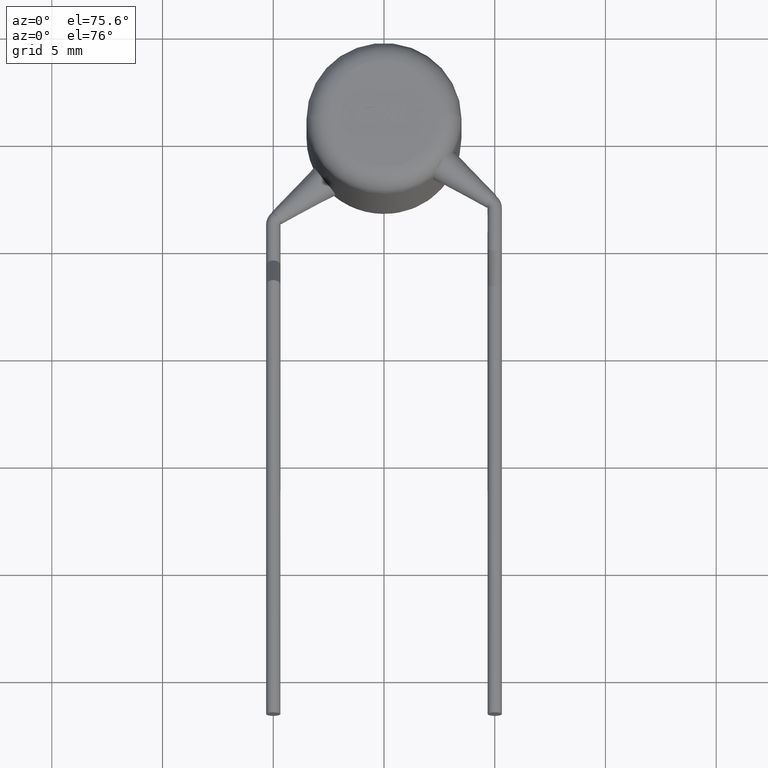
[diagram: clean part render]
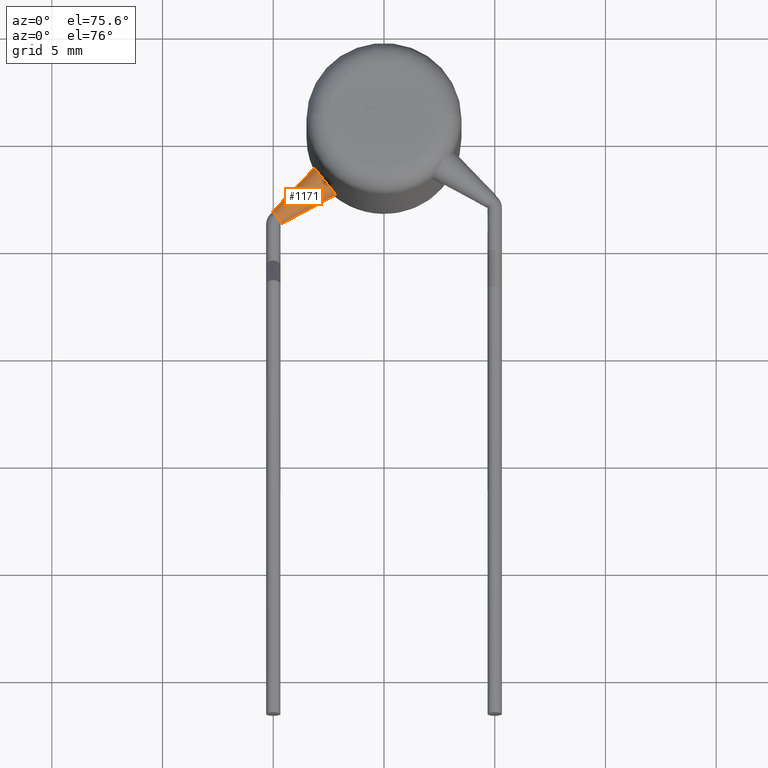
[diagram: same view with one face highlighted and labeled with its STEP entity id]
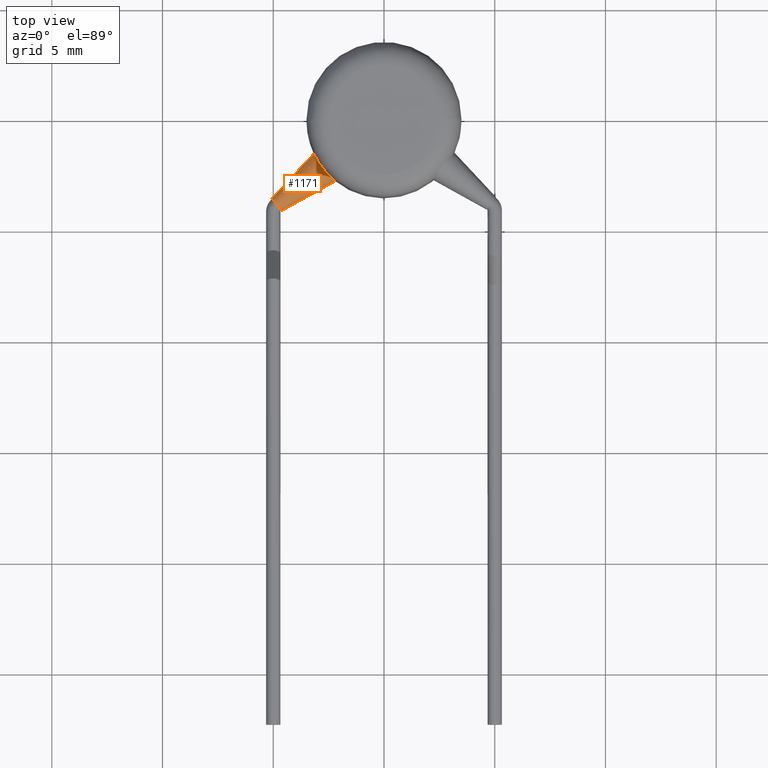
[diagram: same view with one face highlighted and labeled with its STEP entity id]
A machine part, auxiliary view. The second image highlights one B-rep face of the part: STEP entity #1171.
A second angle (top view) of the same face is appended — the face is thin or edge-on in the first view.
In plain terms, the highlighted conical surface has half-angle 9 deg.
Its self-contained STEP definition (entity closure, byte-faithful):
#1 = VERTEX_POINT ( 'NONE', #774 ) ;
#28 = CARTESIAN_POINT ( 'NONE',  ( -5.061630886008985400, -3.508901932770409600, 1.250000000000000000 ) ) ;
#53 = LINE ( 'NONE', #3828, #1350 ) ;
#85 = CARTESIAN_POINT ( 'NONE',  ( -2.285452653893777600, -2.651107412290484100, 1.641017608035533900 ) ) ;
#298 = CONICAL_SURFACE ( 'NONE', #518, 0.3499999999999998700, 0.1570796326794896800 ) ;
#367 = CARTESIAN_POINT ( 'NONE',  ( -3.170760625035219600, -1.481984162778489500, 1.249999999999999800 ) ) ;
#381 = CARTESIAN_POINT ( 'NONE',  ( -2.206098872104708800, -2.717191153838524300, 1.250000000000000000 ) ) ;
#499 = EDGE_LOOP ( 'NONE', ( #1105, #922, #1937, #4230 ) ) ;
#518 = AXIS2_PLACEMENT_3D ( 'NONE', #3333, #1982, #2034 ) ;
#527 = CARTESIAN_POINT ( 'NONE',  ( -3.170760625035219600, -1.481984162778489500, 1.249999999999999800 ) ) ;
#540 = DIRECTION ( 'NONE',  ( 0.8747141997998033600, 0.4846391117817355200, 0.0000000000000000000 ) ) ;
#680 = FACE_OUTER_BOUND ( 'NONE', #499, .T. ) ;
#683 = CARTESIAN_POINT ( 'NONE',  ( -3.170760625035220000, -1.481984162778489100, 1.351520535019352000 ) ) ;
#699 = CARTESIAN_POINT ( 'NONE',  ( -2.491889636305742800, -2.462103430295461400, 1.937452505753714400 ) ) ;
#734 = CARTESIAN_POINT ( 'NONE',  ( -2.223036915557440100, -2.703658857319194200, 1.454167145143290700 ) ) ;
#774 = CARTESIAN_POINT ( 'NONE',  ( -2.206098872104708800, -2.717191153838524300, 1.250000000000000000 ) ) ;
#841 = DIRECTION ( 'NONE',  ( -0.7881307563061230600, -0.6155078480119797700, 0.0000000000000000000 ) ) ;
#922 = ORIENTED_EDGE ( 'NONE', *, *, #2482, .F. ) ;
#933 = EDGE_CURVE ( 'NONE', #1, #3732, #2292, .T. ) ;
#990 = CARTESIAN_POINT ( 'NONE',  ( -2.883866474476177300, -1.993704242200750000, 2.019577430144607400 ) ) ;
#1008 = EDGE_CURVE ( 'NONE', #2230, #3732, #1677, .T. ) ;
#1105 = ORIENTED_EDGE ( 'NONE', *, *, #1008, .F. ) ;
#1171 = ADVANCED_FACE ( 'NONE', ( #680 ), #298, .T. ) ;
#1250 = VECTOR ( 'NONE', #3668, 1000.000000000000200 ) ;
#1350 = VECTOR ( 'NONE', #540, 1000.000000000000100 ) ;
#1389 = CARTESIAN_POINT ( 'NONE',  ( -2.632954239084559500, -2.314971797422932000, 2.019538149975622000 ) ) ;
#1677 = LINE ( 'NONE', #2400, #1250 ) ;
#1691 = CARTESIAN_POINT ( 'NONE',  ( -2.206098872104707900, -2.717191153838524300, 1.352877504723457100 ) ) ;
#1768 = CARTESIAN_POINT ( 'NONE',  ( -4.630775392400599000, -4.060593462184695700, 1.250000000000000000 ) ) ;
#1838 = DIRECTION ( 'NONE',  ( 0.6155078480119801100, -0.7881307563061228400, 0.0000000000000000000 ) ) ;
#1937 = ORIENTED_EDGE ( 'NONE', *, *, #3733, .T. ) ;
#1982 = DIRECTION ( 'NONE',  ( 0.7881307563061230600, 0.6155078480119797700, -0.0000000000000000000 ) ) ;
#2034 = DIRECTION ( 'NONE',  ( 0.6155078480119801100, -0.7881307563061228400, 0.0000000000000000000 ) ) ;
#2230 = VERTEX_POINT ( 'NONE', #28 ) ;
#2292 = B_SPLINE_CURVE_WITH_KNOTS ( 'NONE', 3,
 ( #381, #1691, #734, #85, #4025, #699, #1389, #990, #3395, #2376, #3050, #2662, #683, #367 ),
 .UNSPECIFIED., .F., .F.,
 ( 4, 2, 2, 2, 2, 2, 4 ),
 ( 0.0002539847493750933500, 0.0005586012227294385600, 0.0008632176960837836000, 0.001472450642792474300, 0.002081683589501165300, 0.002386300062855510300, 0.002690916536209855400 ),
 .UNSPECIFIED. ) ;
#2376 = CARTESIAN_POINT ( 'NONE',  ( -3.099283301192928200, -1.627848285729839100, 1.725321884151472800 ) ) ;
#2400 = CARTESIAN_POINT ( 'NONE',  ( -5.061630886008985400, -3.508901932770409600, 1.250000000000000000 ) ) ;
#2431 = CIRCLE ( 'NONE', #3423, 0.3499999999999998700 ) ;
#2482 = EDGE_CURVE ( 'NONE', #3370, #2230, #2431, .T. ) ;
#2662 = CARTESIAN_POINT ( 'NONE',  ( -3.161774336799698200, -1.501611596569369000, 1.453772270304467300 ) ) ;
#2831 = CARTESIAN_POINT ( 'NONE',  ( -4.846203139204791700, -3.784747697477552500, 1.250000000000000000 ) ) ;
#3050 = CARTESIAN_POINT ( 'NONE',  ( -3.126024614890290800, -1.574682333328468700, 1.640422757116311200 ) ) ;
#3333 = CARTESIAN_POINT ( 'NONE',  ( -4.846203139204791700, -3.784747697477552500, 1.250000000000000000 ) ) ;
#3370 = VERTEX_POINT ( 'NONE', #1768 ) ;
#3395 = CARTESIAN_POINT ( 'NONE',  ( -2.992218036810692500, -1.821652905965434500, 1.938300008986739000 ) ) ;
#3423 = AXIS2_PLACEMENT_3D ( 'NONE', #2831, #841, #1838 ) ;
#3668 = DIRECTION ( 'NONE',  ( 0.6821409179361678200, 0.7312207382707374100, -1.915769668878472600E-017 ) ) ;
#3732 = VERTEX_POINT ( 'NONE', #527 ) ;
#3733 = EDGE_CURVE ( 'NONE', #3370, #1, #53, .T. ) ;
#3828 = CARTESIAN_POINT ( 'NONE',  ( -4.630775392400599000, -4.060593462184695700, 1.250000000000000000 ) ) ;
#4025 = CARTESIAN_POINT ( 'NONE',  ( -2.331018293051291000, -2.611842363679401500, 1.726366870624302900 ) ) ;
#4230 = ORIENTED_EDGE ( 'NONE', *, *, #933, .T. ) ;